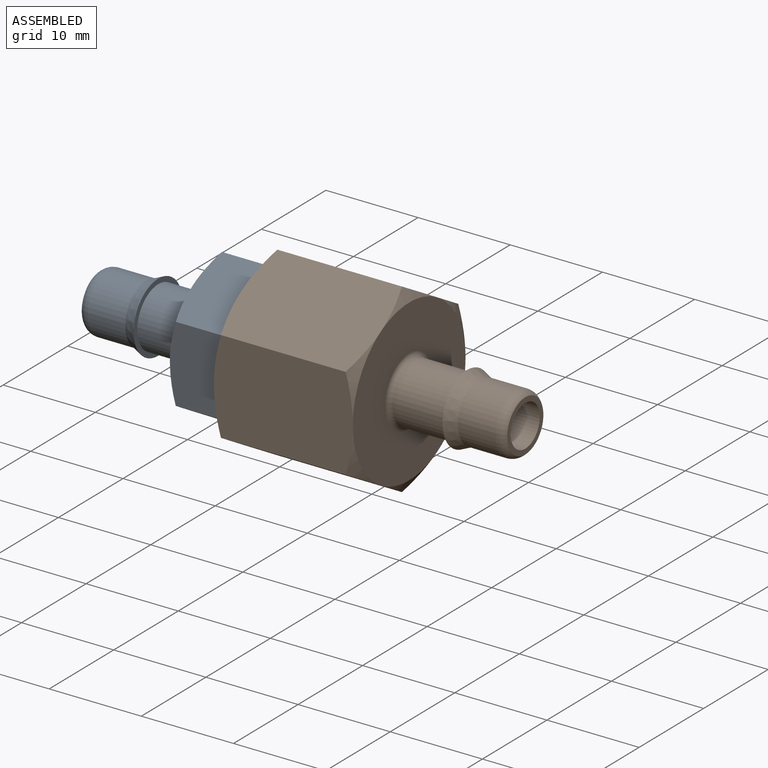
[diagram: assembled view]
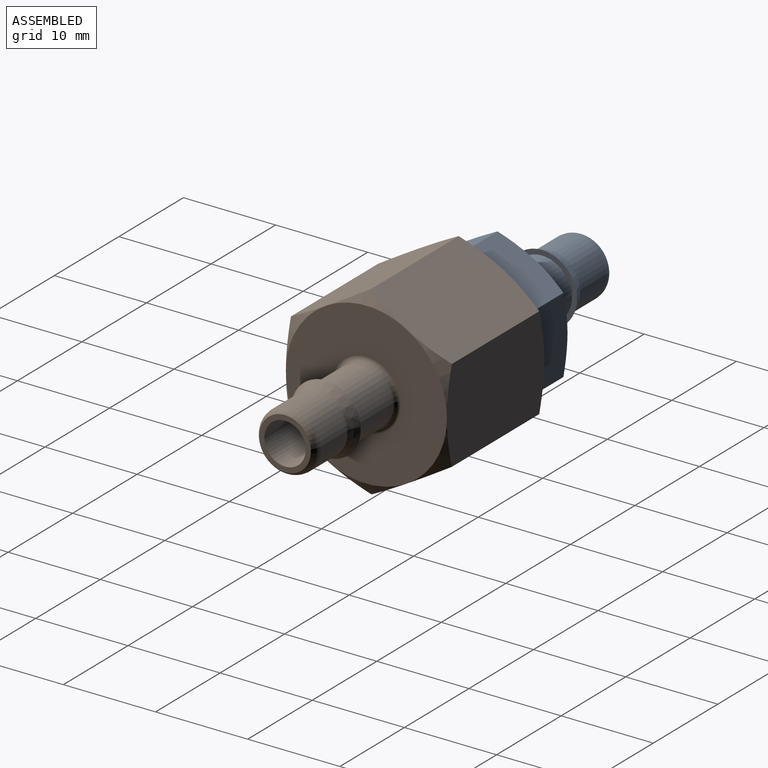
[diagram: assembled view, second angle]
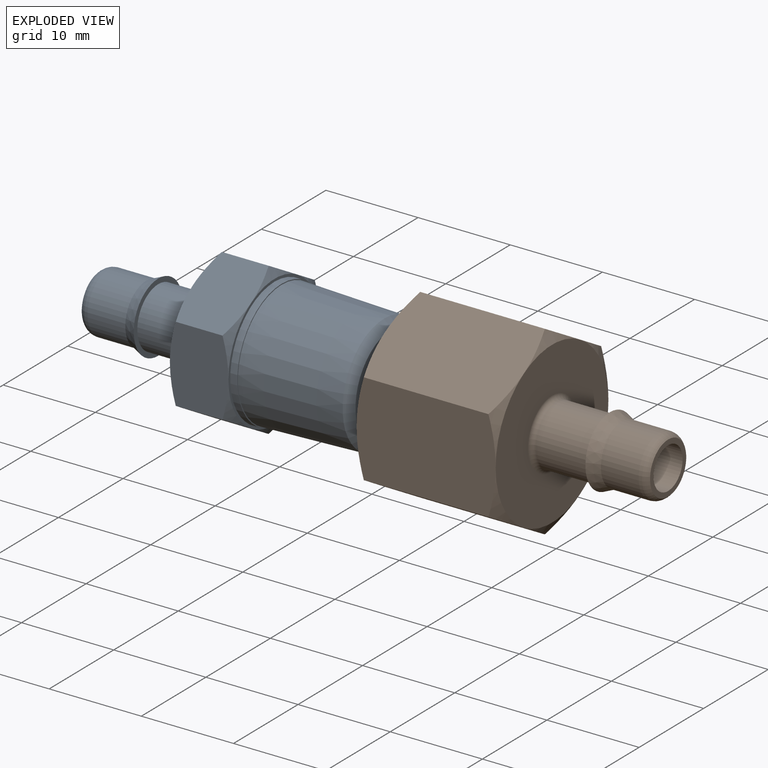
[diagram: exploded view]
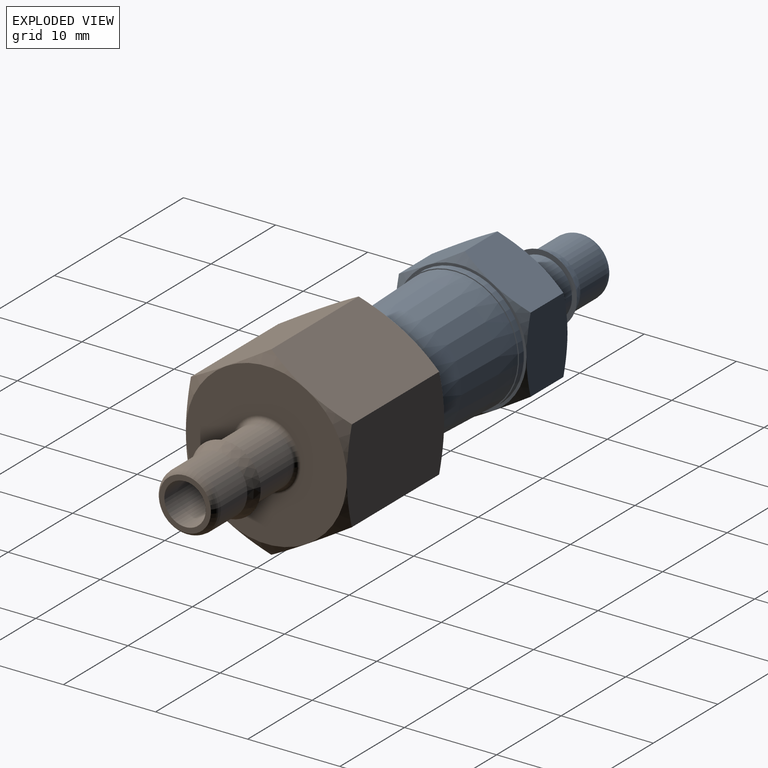
[diagram: exploded view, second angle]
ASSEMBLY  parts=2 mates=2
PART A: 35 faces, bbox 31.9x16.5x16.5 mm
  f0: plane 7.14x6.35mm, normal (0,0.5,0.87), area 48.8mm2, adj f1,f9,f10,f16,f18,f34
  f1: plane 8.25x6.35mm, normal (0,1,0), area 48.8mm2, adj f0,f10,f11,f15,f16,f33
  f2: cone r=7.14mm half-angle=60deg, axis (1,0,0), area 3.2mm2, adj f4,f30,f34
  f3: plane 7.14x6.35mm, normal (0,-0.5,-0.87), area 48.8mm2, adj f4,f12,f13,f14,f17,f33
  f4: plane 8.25x6.35mm, normal (0,-1,0), area 48.8mm2, adj f2,f3,f8,f12,f17,f34
  f5: cylinder r=6.86mm len=13.72mm, axis (-1,0,0), area 32.8mm2, adj f6,f19
  f6: plane 14.29x14.29mm, normal (1,0,0), area 12.6mm2, adj f5,f8,f13,f15,f16,f17,f18
  f7: cylinder r=2.25mm len=14.71mm, axis (-1,0,0), area 207.8mm2, adj f23,f32
  f8: cone r=12.64mm half-angle=60deg, axis (-1,0,0), area 3.2mm2, adj f4,f6,f34
  f9: cone r=7.14mm half-angle=60deg, axis (1,0,0), area 3.2mm2, adj f0,f30,f34
  f10: cone r=7.14mm half-angle=60deg, axis (1,0,0), area 3.2mm2, adj f0,f1,f30
  f11: cone r=7.14mm half-angle=60deg, axis (1,0,0), area 3.2mm2, adj f1,f30,f33
  f12: cone r=7.14mm half-angle=60deg, axis (1,0,0), area 3.2mm2, adj f3,f4,f30
  f13: cone r=12.64mm half-angle=60deg, axis (-1,0,0), area 3.2mm2, adj f3,f6,f33
  f14: cone r=7.14mm half-angle=60deg, axis (1,0,0), area 3.2mm2, adj f3,f30,f33
  f15: cone r=12.64mm half-angle=60deg, axis (-1,0,0), area 3.2mm2, adj f1,f6,f33
  f16: cone r=12.64mm half-angle=60deg, axis (-1,0,0), area 3.2mm2, adj f0,f1,f6
  f17: cone r=12.64mm half-angle=60deg, axis (-1,0,0), area 3.2mm2, adj f3,f4,f6
  f18: cone r=12.64mm half-angle=60deg, axis (-1,0,0), area 3.2mm2, adj f0,f6,f34
  f19: plane 13.72x13.72mm, normal (1,0,0), area 4.2mm2, adj f5,f20
  f20: cone r=6.76mm half-angle=1.8deg, axis (-1,0,0), area 460.2mm2, adj f19,f21
  f21: cone r=6.41mm half-angle=45deg, axis (-1,0,0), area 43.8mm2, adj f20,f22
  f22: plane 11.18x11.18mm, normal (1,0,0), area 47.6mm2, adj f21,f31
  f23: plane 5.61x5.61mm, normal (-1,0,0), area 8.9mm2, adj f7,f24
  f24: torus R=2.02mm, axis (1,0,0), area 20.6mm2, adj f23,f25
  f25: cylinder r=3.24mm len=6.48mm, axis (-1,0,0), area 83.4mm2, adj f24,f26
  f26: cone r=3.24mm half-angle=22.9deg, axis (1,0,0), area 31mm2, adj f25,f27
  f27: plane 7.57x7.57mm, normal (1,0,0), area 12mm2, adj f26,f28
  f28: cylinder r=3.24mm len=6.48mm, axis (-1,0,0), area 117.3mm2, adj f27,f29
  f29: torus R=3.75mm, axis (1,0,0), area 17.2mm2, adj f28,f30
  f30: plane 14.29x14.29mm, normal (-1,0,0), area 116.2mm2, adj f2,f9,f10,f11,f12,f14,f29
  f31: cylinder r=4.01mm len=15.88mm, axis (-1,0,0), area 400.3mm2, adj f22,f32
  f32: cone r=2.25mm half-angle=59deg, axis (1,0,0), area 40.5mm2, adj f7,f31
  f33: plane 7.14x6.35mm, normal (0,0.5,-0.87), area 48.8mm2, adj f1,f3,f11,f13,f14,f15
  f34: plane 7.14x6.35mm, normal (0,-0.5,0.87), area 48.8mm2, adj f0,f2,f4,f8,f9,f18
PART B: 33 faces, bbox 28x20.2x20.2 mm
  f0: plane 15.09x8.73mm, normal (0,0.5,0.87), area 146.7mm2, adj f1,f8,f9,f17,f19,f27
  f1: plane 15.09x10.08mm, normal (0,1,0), area 146.7mm2, adj f0,f9,f10,f14,f19,f26
  f2: cone r=8.73mm half-angle=60deg, axis (1,0,0), area 4.7mm2, adj f4,f27,f28
  f3: plane 15.09x8.73mm, normal (0,-0.5,-0.87), area 146.7mm2, adj f4,f11,f12,f13,f18,f26
  f4: plane 15.09x10.08mm, normal (0,-1,0), area 146.7mm2, adj f2,f3,f11,f15,f18,f27
  f5: torus R=2.02mm, axis (1,0,0), area 20.6mm2, adj f6,f7
  f6: cylinder r=3.24mm len=6.48mm, axis (-1,0,0), area 83.4mm2, adj f5,f32
  f7: plane 5.61x5.61mm, normal (-1,0,0), area 8.9mm2, adj f5,f20
  f8: cone r=8.73mm half-angle=60deg, axis (1,0,0), area 4.7mm2, adj f0,f27,f28
  f9: cone r=8.73mm half-angle=60deg, axis (1,0,0), area 4.7mm2, adj f0,f1,f28
  f10: cone r=8.73mm half-angle=60deg, axis (1,0,0), area 4.7mm2, adj f1,f26,f28
  f11: cone r=8.73mm half-angle=60deg, axis (1,0,0), area 4.7mm2, adj f3,f4,f28
  f12: cone r=17.46mm half-angle=60deg, axis (-1,0,0), area 4.7mm2, adj f3,f16,f26
  f13: cone r=8.73mm half-angle=60deg, axis (1,0,0), area 4.7mm2, adj f3,f26,f28
  f14: cone r=17.46mm half-angle=60deg, axis (-1,0,0), area 4.7mm2, adj f1,f16,f26
  f15: cone r=17.46mm half-angle=60deg, axis (-1,0,0), area 4.7mm2, adj f4,f16,f27
  f16: plane 17.46x17.46mm, normal (1,0,0), area 70.7mm2, adj f12,f14,f15,f17,f18,f19,f25
  f17: cone r=17.46mm half-angle=60deg, axis (-1,0,0), area 4.7mm2, adj f0,f16,f27
  f18: cone r=17.46mm half-angle=60deg, axis (-1,0,0), area 4.7mm2, adj f3,f4,f16
  f19: cone r=17.46mm half-angle=60deg, axis (-1,0,0), area 4.7mm2, adj f0,f1,f16
  f20: cylinder r=2.25mm len=13.93mm, axis (-1,0,0), area 196.8mm2, adj f7,f21
  f21: cone r=2.25mm half-angle=59deg, axis (1,0,0), area 94.9mm2, adj f20,f22
  f22: cylinder r=5.56mm len=11.13mm, axis (-1,0,0), area 60.4mm2, adj f21,f23
  f23: plane 12.18x12.18mm, normal (1,0,0), area 19.3mm2, adj f22,f24
  f24: cone r=6.09mm half-angle=1.8deg, axis (1,0,0), area 355.5mm2, adj f23,f25
  f25: cone r=6.37mm half-angle=45deg, axis (1,0,0), area 58.3mm2, adj f16,f24
  f26: plane 15.09x8.73mm, normal (0,0.5,-0.87), area 146.7mm2, adj f1,f3,f10,f12,f13,f14
  f27: plane 15.09x8.73mm, normal (0,-0.5,0.87), area 146.7mm2, adj f0,f2,f4,f8,f15,f17
  f28: plane 17.46x17.46mm, normal (-1,0,0), area 195.4mm2, adj f2,f8,f9,f10,f11,f13,f29
  f29: torus R=3.75mm, axis (1,0,0), area 17.2mm2, adj f28,f30
  f30: cylinder r=3.24mm len=6.48mm, axis (-1,0,0), area 117.3mm2, adj f29,f31
  f31: plane 7.57x7.57mm, normal (1,0,0), area 12mm2, adj f30,f32
  f32: cone r=3.24mm half-angle=22.9deg, axis (1,0,0), area 31mm2, adj f6,f31
PLACE A t=(41.81,10.47,-25.02)mm
PLACE B rot(axis=(0,-1,0),180deg) t=(28.63,10.47,-25.02)mm
MATE fastened A.f2 <-> B.f2  axis (1,0,0) through (29.11,10.47,-25.02)mm
MATE cylindrical B.f2 <-> A.f2  axis (-1,0,0) through (29.59,10.47,-25.02)mm
